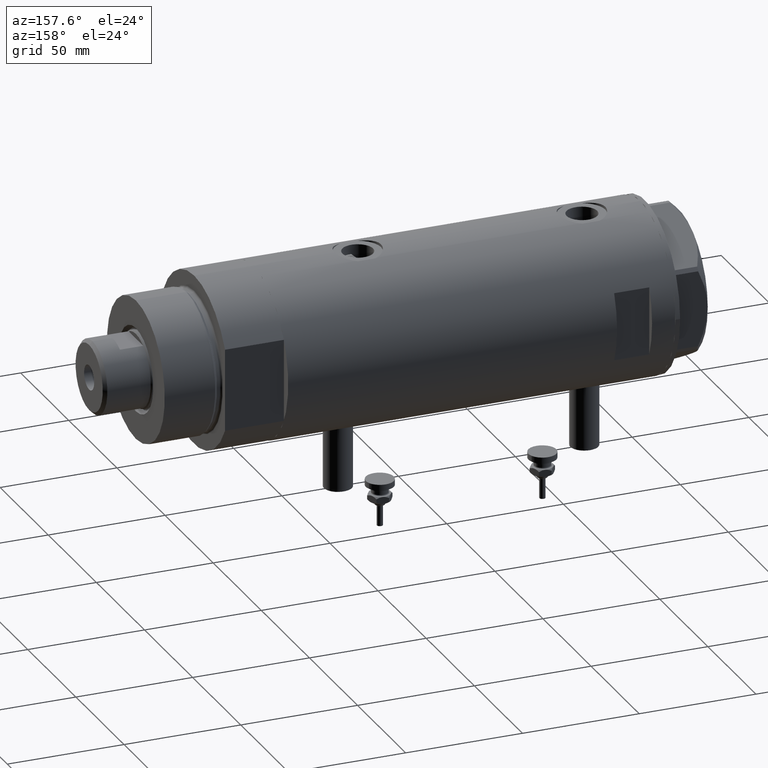
[diagram: clean part render]
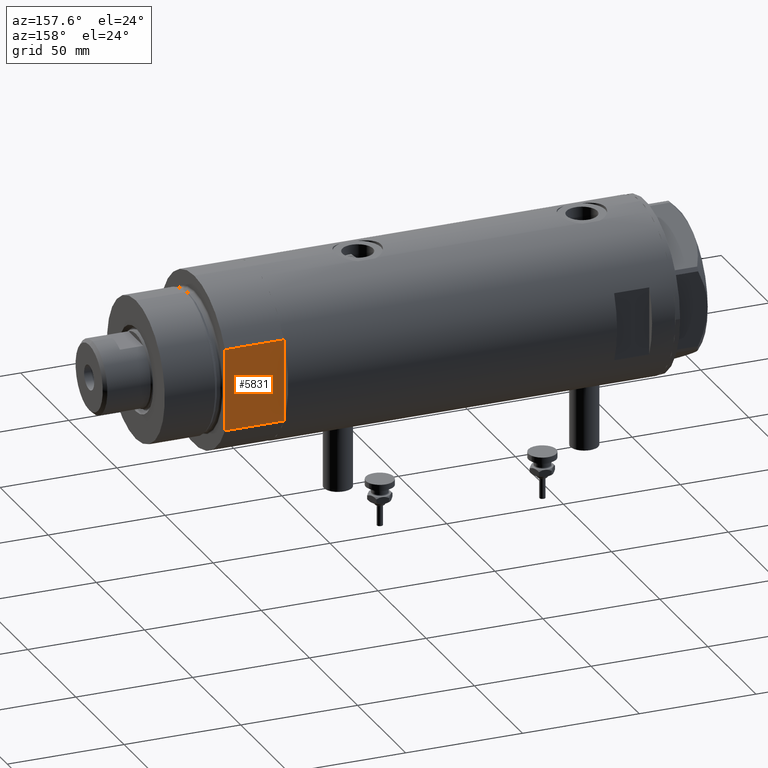
[diagram: same view with one face highlighted and labeled with its STEP entity id]
A machine part, auxiliary view. The second image highlights one B-rep face of the part: STEP entity #5831.
In plain terms, the highlighted planar face has unit normal (0, -1, -0).
Its self-contained STEP definition (entity closure, byte-faithful):
#206 = EDGE_CURVE ( 'NONE', #3420, #4520, #4481, .T. ) ;
#323 = DIRECTION ( 'NONE',  ( 1.000000000000000000, 0.000000000000000000, 0.000000000000000000 ) ) ;
#520 = EDGE_LOOP ( 'NONE', ( #5861, #703, #3761, #3916, #3221 ) ) ;
#649 = VECTOR ( 'NONE', #323, 1000.000000000000000 ) ;
#699 = DIRECTION ( 'NONE',  ( -0.000000000000000000, -0.000000000000000000, 1.000000000000000000 ) ) ;
#703 = ORIENTED_EDGE ( 'NONE', *, *, #5140, .F. ) ;
#713 = VERTEX_POINT ( 'NONE', #5308 ) ;
#719 = CARTESIAN_POINT ( 'NONE',  ( -17.55704986607943141, 32.00000000000000000, 0.000000000000000000 ) ) ;
#727 = LINE ( 'NONE', #2635, #649 ) ;
#1222 = DIRECTION ( 'NONE',  ( 0.000000000000000000, -1.000000000000000000, 0.000000000000000000 ) ) ;
#1390 = CARTESIAN_POINT ( 'NONE',  ( -17.55704986607943496, 32.00000000000000000, 25.19999999999999929 ) ) ;
#1643 = CARTESIAN_POINT ( 'NONE',  ( -17.55704986607943141, 32.00000000000000000, 25.19999999999999929 ) ) ;
#1652 = CARTESIAN_POINT ( 'NONE',  ( 17.55704986607943496, 32.00000000000000000, 25.19999999999999929 ) ) ;
#1727 = CARTESIAN_POINT ( 'NONE',  ( 17.55704986607943141, 32.00000000000000000, 0.000000000000000000 ) ) ;
#1729 = VECTOR ( 'NONE', #2467, 1000.000000000000000 ) ;
#2196 = CARTESIAN_POINT ( 'NONE',  ( -17.55704986607943141, 32.00000000000000000, 0.000000000000000000 ) ) ;
#2284 = VECTOR ( 'NONE', #5870, 1000.000000000000000 ) ;
#2346 = VERTEX_POINT ( 'NONE', #1652 ) ;
#2467 = DIRECTION ( 'NONE',  ( 1.000000000000000000, 0.000000000000000000, 0.000000000000000000 ) ) ;
#2635 = CARTESIAN_POINT ( 'NONE',  ( -17.55704986607943141, 32.00000000000000000, 0.000000000000000000 ) ) ;
#2988 = EDGE_CURVE ( 'NONE', #3420, #4904, #5636, .T. ) ;
#3029 = DIRECTION ( 'NONE',  ( 1.000000000000000000, 0.000000000000000000, 0.000000000000000000 ) ) ;
#3044 = DIRECTION ( 'NONE',  ( 0.000000000000000000, -0.000000000000000000, -1.000000000000000000 ) ) ;
#3181 = VECTOR ( 'NONE', #3029, 1000.000000000000000 ) ;
#3221 = ORIENTED_EDGE ( 'NONE', *, *, #206, .T. ) ;
#3349 = CARTESIAN_POINT ( 'NONE',  ( -17.55704986607943141, 32.00000000000000000, 0.000000000000000000 ) ) ;
#3420 = VERTEX_POINT ( 'NONE', #5645 ) ;
#3479 = LINE ( 'NONE', #1643, #3181 ) ;
#3626 = LINE ( 'NONE', #1727, #4528 ) ;
#3761 = ORIENTED_EDGE ( 'NONE', *, *, #3967, .F. ) ;
#3916 = ORIENTED_EDGE ( 'NONE', *, *, #2988, .F. ) ;
#3967 = EDGE_CURVE ( 'NONE', #4904, #713, #727, .T. ) ;
#4481 = LINE ( 'NONE', #2196, #2284 ) ;
#4520 = VERTEX_POINT ( 'NONE', #1390 ) ;
#4528 = VECTOR ( 'NONE', #699, 1000.000000000000000 ) ;
#4904 = VERTEX_POINT ( 'NONE', #5518 ) ;
#5108 = EDGE_CURVE ( 'NONE', #4520, #2346, #3479, .T. ) ;
#5140 = EDGE_CURVE ( 'NONE', #713, #2346, #3626, .T. ) ;
#5301 = AXIS2_PLACEMENT_3D ( 'NONE', #719, #1222, #3044 ) ;
#5308 = CARTESIAN_POINT ( 'NONE',  ( 17.55704986607943496, 32.00000000000000000, 0.000000000000000000 ) ) ;
#5343 = PLANE ( 'NONE',  #5301 ) ;
#5374 = FACE_OUTER_BOUND ( 'NONE', #520, .T. ) ;
#5518 = CARTESIAN_POINT ( 'NONE',  ( 0.000000000000000000, 32.00000000000000000, 0.000000000000000000 ) ) ;
#5636 = LINE ( 'NONE', #3349, #1729 ) ;
#5645 = CARTESIAN_POINT ( 'NONE',  ( -17.55704986607943141, 32.00000000000000000, 0.000000000000000000 ) ) ;
#5831 = ADVANCED_FACE ( 'NONE', ( #5374 ), #5343, .F. ) ;
#5861 = ORIENTED_EDGE ( 'NONE', *, *, #5108, .T. ) ;
#5870 = DIRECTION ( 'NONE',  ( -0.000000000000000000, -0.000000000000000000, 1.000000000000000000 ) ) ;